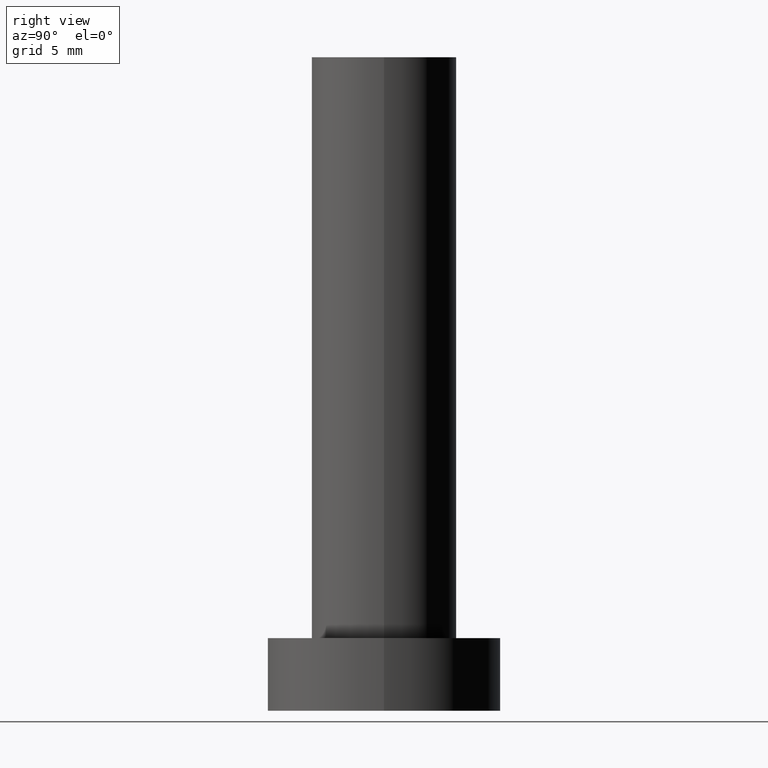
[diagram: clean part render]
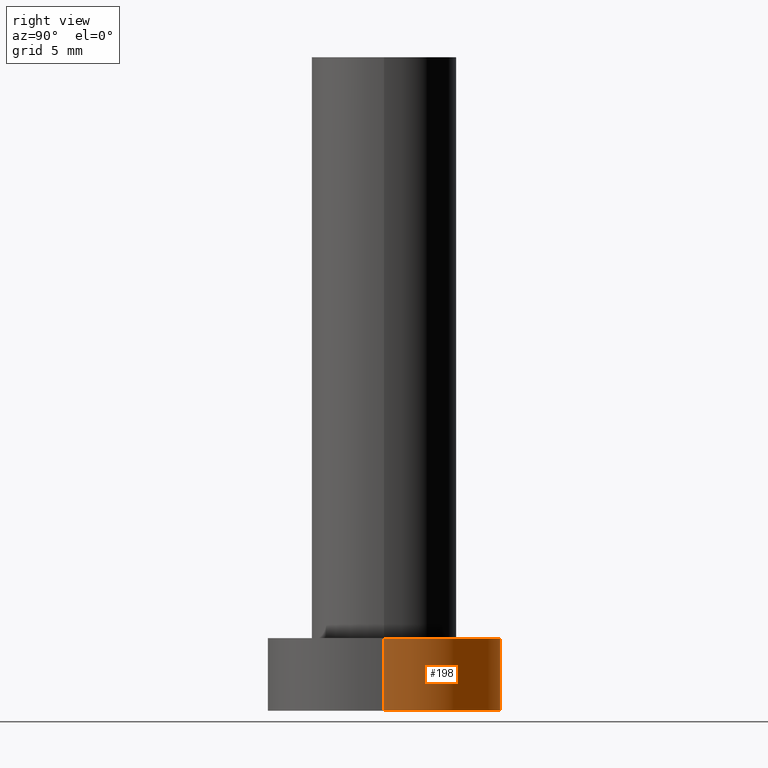
[diagram: same view with one face highlighted and labeled with its STEP entity id]
A machine part, right view. The second image highlights one B-rep face of the part: STEP entity #198.
In plain terms, the highlighted cylindrical surface (partial cylindrical patch) has radius 8 mm, axis along (-0, -0, -1).
Its self-contained STEP definition (entity closure, byte-faithful):
#4 = ORIENTED_EDGE ( 'NONE', *, *, #157, .F. ) ;
#13 = DIRECTION ( 'NONE',  ( -1.000000000000000000, 0.000000000000000000, 0.000000000000000000 ) ) ;
#25 = EDGE_CURVE ( 'NONE', #124, #47, #158, .T. ) ;
#30 = DIRECTION ( 'NONE',  ( 1.000000000000000000, 0.000000000000000000, 0.000000000000000000 ) ) ;
#35 = CARTESIAN_POINT ( 'NONE',  ( 8.000000000000000000, 9.797174393178825657E-16, 0.000000000000000000 ) ) ;
#45 = EDGE_CURVE ( 'NONE', #69, #124, #252, .T. ) ;
#47 = VERTEX_POINT ( 'NONE', #114 ) ;
#69 = VERTEX_POINT ( 'NONE', #209 ) ;
#70 = CARTESIAN_POINT ( 'NONE',  ( 0.000000000000000000, 0.000000000000000000, 5.000000000000000000 ) ) ;
#73 = CARTESIAN_POINT ( 'NONE',  ( 0.000000000000000000, 0.000000000000000000, 5.000000000000000000 ) ) ;
#86 = CARTESIAN_POINT ( 'NONE',  ( -8.000000000000000000, 0.000000000000000000, 5.000000000000000000 ) ) ;
#97 = DIRECTION ( 'NONE',  ( 0.000000000000000000, 0.000000000000000000, 1.000000000000000000 ) ) ;
#109 = ORIENTED_EDGE ( 'NONE', *, *, #179, .F. ) ;
#114 = CARTESIAN_POINT ( 'NONE',  ( -8.000000000000000000, 0.000000000000000000, 0.000000000000000000 ) ) ;
#121 = VECTOR ( 'NONE', #172, 1000.000000000000000 ) ;
#124 = VERTEX_POINT ( 'NONE', #35 ) ;
#125 = DIRECTION ( 'NONE',  ( -0.000000000000000000, -0.000000000000000000, -1.000000000000000000 ) ) ;
#130 = DIRECTION ( 'NONE',  ( 1.000000000000000000, 0.000000000000000000, 0.000000000000000000 ) ) ;
#132 = CARTESIAN_POINT ( 'NONE',  ( 0.000000000000000000, 0.000000000000000000, 0.000000000000000000 ) ) ;
#134 = CIRCLE ( 'NONE', #138, 8.000000000000000000 ) ;
#138 = AXIS2_PLACEMENT_3D ( 'NONE', #73, #220, #30 ) ;
#146 = CARTESIAN_POINT ( 'NONE',  ( -8.000000000000000000, 0.000000000000000000, 5.000000000000000000 ) ) ;
#157 = EDGE_CURVE ( 'NONE', #221, #47, #207, .T. ) ;
#158 = CIRCLE ( 'NONE', #248, 8.000000000000000000 ) ;
#168 = AXIS2_PLACEMENT_3D ( 'NONE', #70, #180, #13 ) ;
#172 = DIRECTION ( 'NONE',  ( -0.000000000000000000, -0.000000000000000000, -1.000000000000000000 ) ) ;
#178 = EDGE_LOOP ( 'NONE', ( #109, #218, #244, #4 ) ) ;
#179 = EDGE_CURVE ( 'NONE', #69, #221, #134, .T. ) ;
#180 = DIRECTION ( 'NONE',  ( -0.000000000000000000, -0.000000000000000000, -1.000000000000000000 ) ) ;
#186 = FACE_OUTER_BOUND ( 'NONE', #178, .T. ) ;
#189 = CYLINDRICAL_SURFACE ( 'NONE', #168, 8.000000000000000000 ) ;
#190 = CARTESIAN_POINT ( 'NONE',  ( 8.000000000000000000, 9.797174393178825657E-16, 5.000000000000000000 ) ) ;
#198 = ADVANCED_FACE ( 'NONE', ( #186 ), #189, .T. ) ;
#207 = LINE ( 'NONE', #146, #236 ) ;
#209 = CARTESIAN_POINT ( 'NONE',  ( 8.000000000000000000, 9.797174393178825657E-16, 5.000000000000000000 ) ) ;
#218 = ORIENTED_EDGE ( 'NONE', *, *, #45, .T. ) ;
#220 = DIRECTION ( 'NONE',  ( 0.000000000000000000, 0.000000000000000000, 1.000000000000000000 ) ) ;
#221 = VERTEX_POINT ( 'NONE', #86 ) ;
#236 = VECTOR ( 'NONE', #125, 1000.000000000000000 ) ;
#244 = ORIENTED_EDGE ( 'NONE', *, *, #25, .T. ) ;
#248 = AXIS2_PLACEMENT_3D ( 'NONE', #132, #97, #130 ) ;
#252 = LINE ( 'NONE', #190, #121 ) ;